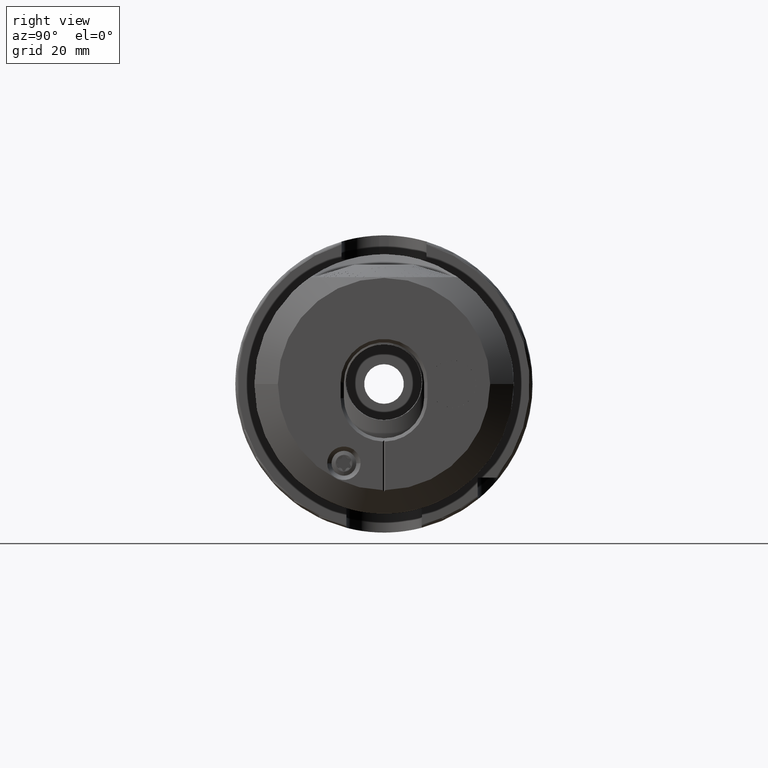
[diagram: clean part render]
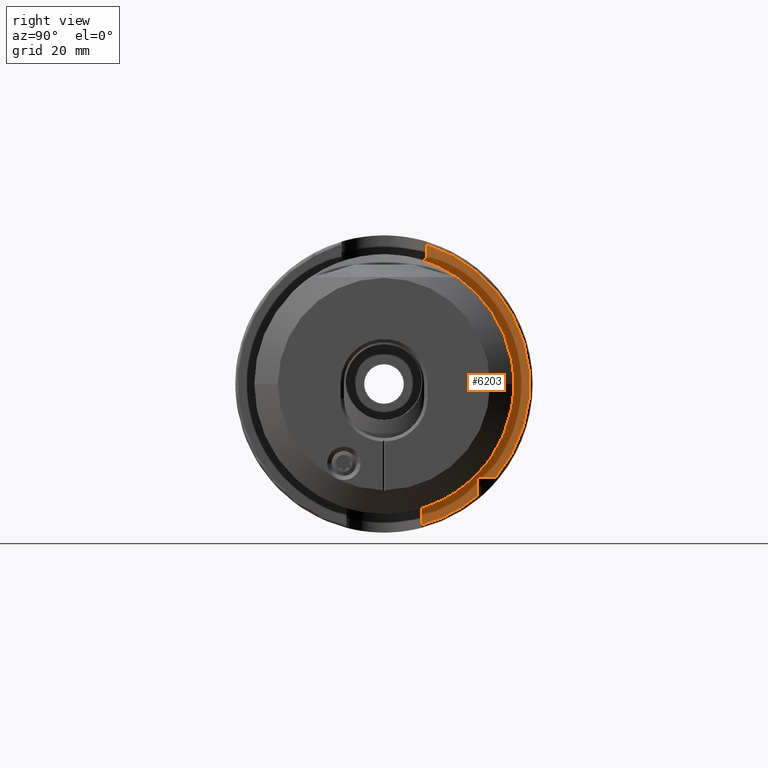
[diagram: same view with one face highlighted and labeled with its STEP entity id]
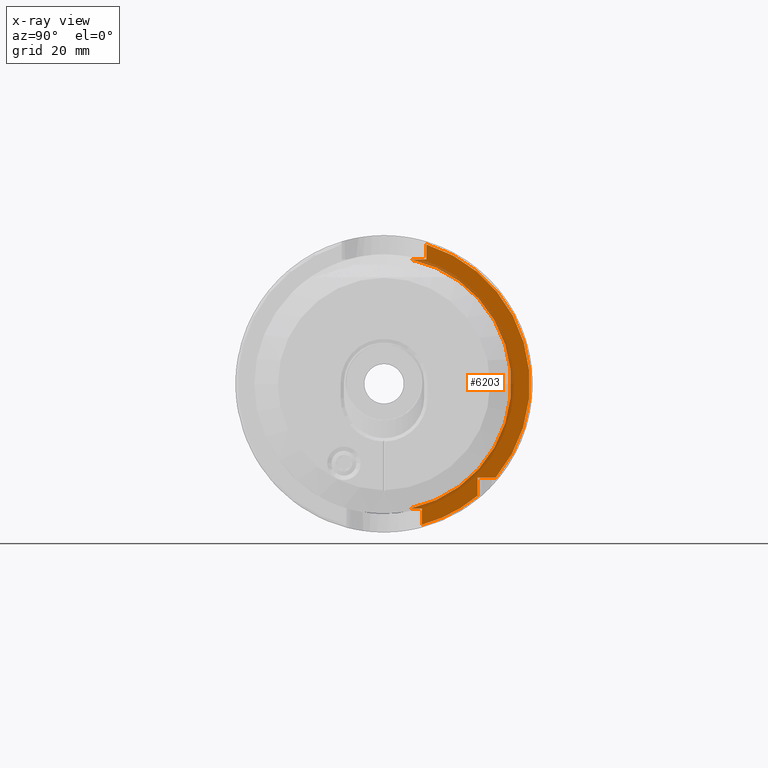
[diagram: x-ray of the same camera — body ghosted, the highlighted face saturated]
A machine part, right view. The second image highlights one B-rep face of the part: STEP entity #6203.
The next image is the same camera in x-ray: the body ghosted, the highlighted face saturated — about 14% of this face is hidden behind the body in this view.
In plain terms, the highlighted planar face has unit normal (-1, 0, 0).
Its self-contained STEP definition (entity closure, byte-faithful):
#268 = EDGE_CURVE ( 'NONE', #1062, #9137, #26659, .T. ) ;
#1062 = VERTEX_POINT ( 'NONE', #35403 ) ;
#1191 = FACE_OUTER_BOUND ( 'NONE', #2510, .T. ) ;
#1208 = CARTESIAN_POINT ( 'NONE',  ( 25.94999999999999900, 0.0000000000000000000, 0.0000000000000000000 ) ) ;
#2510 = EDGE_LOOP ( 'NONE', ( #36131, #15049, #7574, #27963, #27188, #7718, #35458, #8621, #4086 ) ) ;
#2840 = CARTESIAN_POINT ( 'NONE',  ( 25.94999999999999900, 30.89999999999999500, -26.39999999999999900 ) ) ;
#3076 = AXIS2_PLACEMENT_3D ( 'NONE', #1208, #18375, #24460 ) ;
#3851 = VERTEX_POINT ( 'NONE', #26775 ) ;
#4086 = ORIENTED_EDGE ( 'NONE', *, *, #24139, .T. ) ;
#6203 = ADVANCED_FACE ( 'NONE', ( #1191 ), #36693, .F. ) ;
#6709 = VERTEX_POINT ( 'NONE', #12288 ) ;
#6731 = CARTESIAN_POINT ( 'NONE',  ( 25.94999999999999900, 30.89999999999999500, 0.0000000000000000000 ) ) ;
#6732 = EDGE_CURVE ( 'NONE', #3851, #9193, #14031, .T. ) ;
#7574 = ORIENTED_EDGE ( 'NONE', *, *, #38619, .F. ) ;
#7718 = ORIENTED_EDGE ( 'NONE', *, *, #10305, .F. ) ;
#8384 = CARTESIAN_POINT ( 'NONE',  ( 25.94999999999999900, 30.89999999999999500, -19.85000000000000100 ) ) ;
#8621 = ORIENTED_EDGE ( 'NONE', *, *, #36020, .T. ) ;
#8691 = EDGE_CURVE ( 'NONE', #6709, #3851, #34356, .T. ) ;
#9137 = VERTEX_POINT ( 'NONE', #36002 ) ;
#9193 = VERTEX_POINT ( 'NONE', #27582 ) ;
#10305 = EDGE_CURVE ( 'NONE', #16978, #6709, #33787, .T. ) ;
#10415 = CARTESIAN_POINT ( 'NONE',  ( 25.94999999999999900, 0.0000000000000000000, 0.0000000000000000000 ) ) ;
#12038 = DIRECTION ( 'NONE',  ( 0.0000000000000000000, 1.000000000000000000, 0.0000000000000000000 ) ) ;
#12288 = CARTESIAN_POINT ( 'NONE',  ( 25.94999999999999900, 9.000000000000000000, 26.39999999999999900 ) ) ;
#12414 = AXIS2_PLACEMENT_3D ( 'NONE', #6731, #27988, #18299 ) ;
#13445 = AXIS2_PLACEMENT_3D ( 'NONE', #27674, #21568, #15852 ) ;
#13821 = VECTOR ( 'NONE', #19442, 1000.000000000000000 ) ;
#13978 = CARTESIAN_POINT ( 'NONE',  ( 25.94999999999999900, 8.999999999999998200, 0.0000000000000000000 ) ) ;
#14031 = CIRCLE ( 'NONE', #13445, 30.89999999999999500 ) ;
#14105 = DIRECTION ( 'NONE',  ( 0.0000000000000000000, 0.0000000000000000000, 1.000000000000000000 ) ) ;
#15049 = ORIENTED_EDGE ( 'NONE', *, *, #268, .T. ) ;
#15852 = DIRECTION ( 'NONE',  ( 0.0000000000000000000, 0.0000000000000000000, 1.000000000000000000 ) ) ;
#16570 = CARTESIAN_POINT ( 'NONE',  ( 25.94999999999999900, 8.000000000000000000, -29.84644032376389700 ) ) ;
#16978 = VERTEX_POINT ( 'NONE', #19892 ) ;
#17939 = DIRECTION ( 'NONE',  ( 0.0000000000000000000, -1.000000000000000000, 0.0000000000000000000 ) ) ;
#18010 = LINE ( 'NONE', #2840, #38068 ) ;
#18299 = DIRECTION ( 'NONE',  ( -0.0000000000000000000, 0.0000000000000000000, 1.000000000000000000 ) ) ;
#18375 = DIRECTION ( 'NONE',  ( -1.000000000000000000, -0.0000000000000000000, -0.0000000000000000000 ) ) ;
#19442 = DIRECTION ( 'NONE',  ( 0.0000000000000000000, 0.0000000000000000000, -1.000000000000000000 ) ) ;
#19470 = VECTOR ( 'NONE', #28734, 1000.000000000000000 ) ;
#19892 = CARTESIAN_POINT ( 'NONE',  ( 25.94999999999999900, 5.660388679233999900, 26.39999999999999900 ) ) ;
#21568 = DIRECTION ( 'NONE',  ( -1.000000000000000000, -0.0000000000000000000, -0.0000000000000000000 ) ) ;
#24139 = EDGE_CURVE ( 'NONE', #25648, #34050, #29989, .T. ) ;
#24460 = DIRECTION ( 'NONE',  ( 0.0000000000000000000, 0.0000000000000000000, 1.000000000000000000 ) ) ;
#25008 = LINE ( 'NONE', #8384, #38412 ) ;
#25556 = CARTESIAN_POINT ( 'NONE',  ( 25.94999999999999900, 19.85000000000000500, 0.0000000000000000000 ) ) ;
#25648 = VERTEX_POINT ( 'NONE', #33162 ) ;
#26381 = CARTESIAN_POINT ( 'NONE',  ( 25.94999999999999900, 5.660388679233999900, -26.39999999999999900 ) ) ;
#26432 = EDGE_CURVE ( 'NONE', #1062, #34050, #27506, .T. ) ;
#26534 = EDGE_CURVE ( 'NONE', #16978, #34801, #27547, .T. ) ;
#26659 = LINE ( 'NONE', #25556, #30504 ) ;
#26775 = CARTESIAN_POINT ( 'NONE',  ( 25.94999999999999900, 8.999999999999998200, 29.56027740059283500 ) ) ;
#27188 = ORIENTED_EDGE ( 'NONE', *, *, #8691, .F. ) ;
#27506 = CIRCLE ( 'NONE', #3076, 30.89999999999999500 ) ;
#27531 = AXIS2_PLACEMENT_3D ( 'NONE', #10415, #31957, #31826 ) ;
#27547 = CIRCLE ( 'NONE', #27531, 27.00000000000000700 ) ;
#27582 = CARTESIAN_POINT ( 'NONE',  ( 25.94999999999999900, 23.68095226125840100, -19.85000000000000100 ) ) ;
#27674 = CARTESIAN_POINT ( 'NONE',  ( 25.94999999999999900, 0.0000000000000000000, 0.0000000000000000000 ) ) ;
#27963 = ORIENTED_EDGE ( 'NONE', *, *, #6732, .F. ) ;
#27988 = DIRECTION ( 'NONE',  ( -1.000000000000000000, 0.0000000000000000000, -0.0000000000000000000 ) ) ;
#28734 = DIRECTION ( 'NONE',  ( 0.0000000000000000000, 1.000000000000000000, 0.0000000000000000000 ) ) ;
#29989 = LINE ( 'NONE', #37578, #13821 ) ;
#30504 = VECTOR ( 'NONE', #38125, 1000.000000000000000 ) ;
#31815 = CARTESIAN_POINT ( 'NONE',  ( 25.94999999999999900, 30.89999999999999500, 26.39999999999999900 ) ) ;
#31826 = DIRECTION ( 'NONE',  ( 0.0000000000000000000, 0.0000000000000000000, 1.000000000000000000 ) ) ;
#31957 = DIRECTION ( 'NONE',  ( -1.000000000000000000, -0.0000000000000000000, -0.0000000000000000000 ) ) ;
#33162 = CARTESIAN_POINT ( 'NONE',  ( 25.94999999999999900, 8.000000000000000000, -26.39999999999999900 ) ) ;
#33787 = LINE ( 'NONE', #31815, #19470 ) ;
#34050 = VERTEX_POINT ( 'NONE', #16570 ) ;
#34356 = LINE ( 'NONE', #13978, #37691 ) ;
#34801 = VERTEX_POINT ( 'NONE', #26381 ) ;
#35403 = CARTESIAN_POINT ( 'NONE',  ( 25.94999999999999900, 19.85000000000000500, -23.68095226125840100 ) ) ;
#35458 = ORIENTED_EDGE ( 'NONE', *, *, #26534, .T. ) ;
#36002 = CARTESIAN_POINT ( 'NONE',  ( 25.94999999999999900, 19.85000000000000500, -19.85000000000000100 ) ) ;
#36020 = EDGE_CURVE ( 'NONE', #34801, #25648, #18010, .T. ) ;
#36131 = ORIENTED_EDGE ( 'NONE', *, *, #26432, .F. ) ;
#36693 = PLANE ( 'NONE',  #12414 ) ;
#37578 = CARTESIAN_POINT ( 'NONE',  ( 25.94999999999999900, 8.000000000000000000, 0.0000000000000000000 ) ) ;
#37691 = VECTOR ( 'NONE', #14105, 1000.000000000000000 ) ;
#38068 = VECTOR ( 'NONE', #12038, 1000.000000000000000 ) ;
#38125 = DIRECTION ( 'NONE',  ( 0.0000000000000000000, 0.0000000000000000000, 1.000000000000000000 ) ) ;
#38412 = VECTOR ( 'NONE', #17939, 1000.000000000000000 ) ;
#38619 = EDGE_CURVE ( 'NONE', #9193, #9137, #25008, .T. ) ;